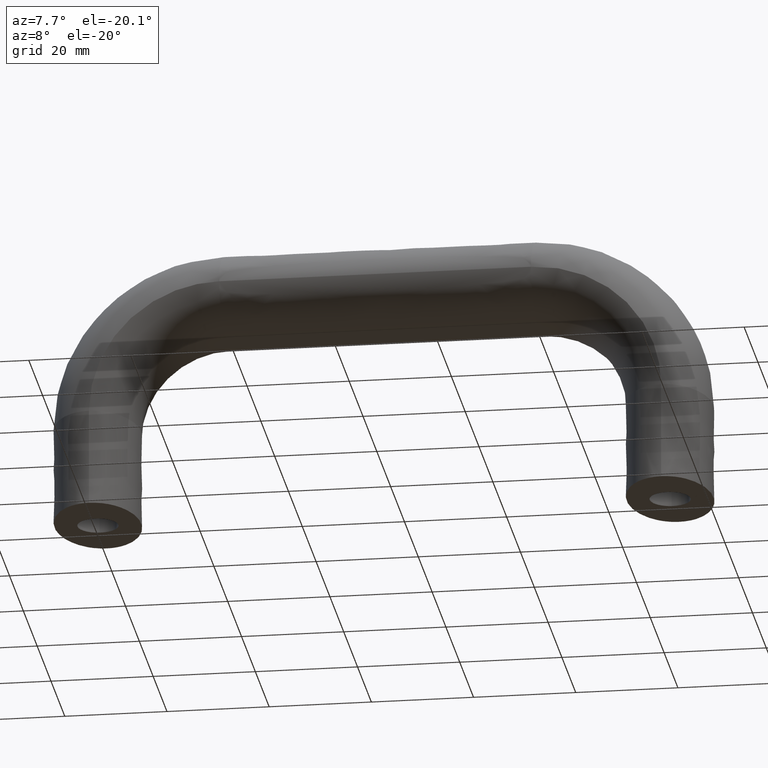
[diagram: clean part render]
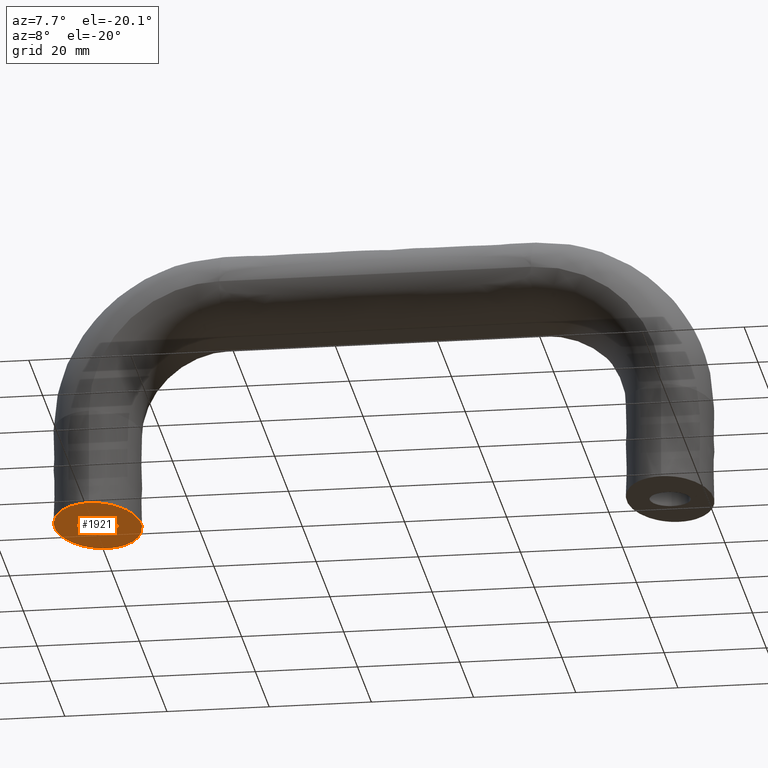
[diagram: same view with one face highlighted and labeled with its STEP entity id]
A machine part, auxiliary view. The second image highlights one B-rep face of the part: STEP entity #1921.
In plain terms, the highlighted face is a freeform B-spline surface patch.
Its self-contained STEP definition (entity closure, byte-faithful):
#85=CARTESIAN_POINT('',(0.472136938864147,-3.972038105426481,-3.407314E-016));
#86=VERTEX_POINT('',#85);
#92=CARTESIAN_POINT('',(-4.0,0.0,0.0));
#93=VERTEX_POINT('',#92);
#94=CARTESIAN_POINT('',(0.472136938864147,-3.972038105426481,-3.407314E-016));
#95=CARTESIAN_POINT('',(0.236896478847260,-4.000000000000000,0.0));
#96=CARTESIAN_POINT('',(0.0,-4.0,0.0));
#97=CARTESIAN_POINT('',(-4.000000000000000,-4.000000000000000,0.0));
#98=CARTESIAN_POINT('',(-4.0,0.0,0.0));
#106=(BOUNDED_CURVE()B_SPLINE_CURVE(2,(#94,#95,#96,#97,#98),.UNSPECIFIED.,.F.,.U.)B_SPLINE_CURVE_WITH_KNOTS((3,2,3),(0.229562473495467,0.250000000000000,0.500000000000000),.UNSPECIFIED.)CURVE()GEOMETRIC_REPRESENTATION_ITEM()RATIONAL_B_SPLINE_CURVE((0.956026754148337,0.976055948310008,1.0,0.707106781186548,1.0))REPRESENTATION_ITEM(''));
#107=EDGE_CURVE('',#86,#93,#106,.T.);
#109=CARTESIAN_POINT('',(-0.244194194313367,3.992539191474974,-3.330669E-016));
#110=VERTEX_POINT('',#109);
#111=CARTESIAN_POINT('',(-4.0,0.0,0.0));
#112=CARTESIAN_POINT('',(-4.000000000000001,3.762824199310103,0.0));
#113=CARTESIAN_POINT('',(-0.244194194313367,3.992539191474974,-3.330669E-016));
#121=(BOUNDED_CURVE()B_SPLINE_CURVE(2,(#111,#112,#113),.UNSPECIFIED.,.F.,.U.)B_SPLINE_CURVE_WITH_KNOTS((3,3),(0.500000000000000,0.739332959115288),.UNSPECIFIED.)CURVE()GEOMETRIC_REPRESENTATION_ITEM()RATIONAL_B_SPLINE_CURVE((1.0,0.719603996946299,0.976072034972131))REPRESENTATION_ITEM(''));
#122=EDGE_CURVE('',#93,#110,#121,.T.);
#196=CARTESIAN_POINT('',(4.0,0.0,0.0));
#197=VERTEX_POINT('',#196);
#198=CARTESIAN_POINT('',(-0.244194194313367,3.992539191474974,-3.330669E-016));
#199=CARTESIAN_POINT('',(-0.122211089469723,4.000000000000000,0.0));
#200=CARTESIAN_POINT('',(0.0,4.0,0.0));
#201=CARTESIAN_POINT('',(4.000000000000000,4.000000000000000,0.0));
#202=CARTESIAN_POINT('',(4.0,0.0,0.0));
#210=(BOUNDED_CURVE()B_SPLINE_CURVE(2,(#198,#199,#200,#201,#202),.UNSPECIFIED.,.F.,.U.)B_SPLINE_CURVE_WITH_KNOTS((3,2,3),(0.739332959115288,0.750000000000000,1.0),.UNSPECIFIED.)CURVE()GEOMETRIC_REPRESENTATION_ITEM()RATIONAL_B_SPLINE_CURVE((0.976072034972130,0.987502784240248,1.0,0.707106781186548,1.0))REPRESENTATION_ITEM(''));
#211=EDGE_CURVE('',#110,#197,#210,.T.);
#213=CARTESIAN_POINT('',(4.0,0.0,0.0));
#214=CARTESIAN_POINT('',(4.000000000000000,-3.552698103378322,0.0));
#215=CARTESIAN_POINT('',(0.472136938864147,-3.972038105426481,-3.407314E-016));
#223=(BOUNDED_CURVE()B_SPLINE_CURVE(2,(#213,#214,#215),.UNSPECIFIED.,.F.,.U.)B_SPLINE_CURVE_WITH_KNOTS((3,3),(0.0,0.229562473495467),.UNSPECIFIED.)CURVE()GEOMETRIC_REPRESENTATION_ITEM()RATIONAL_B_SPLINE_CURVE((1.0,0.731050832876540,0.956026754148337))REPRESENTATION_ITEM(''));
#224=EDGE_CURVE('',#197,#86,#223,.T.);
#1714=CARTESIAN_POINT('',(-3.619217702197332,11.762830137876939,0.0));
#1715=VERTEX_POINT('',#1714);
#1723=CARTESIAN_POINT('',(8.777701E-016,-13.0,4.440892E-016));
#1724=VERTEX_POINT('',#1723);
#1725=CARTESIAN_POINT('',(-3.619217702197332,11.762830137876939,0.0));
#1726=CARTESIAN_POINT('',(-4.957315347035104,10.802779190253920,1.342312E-017));
#1727=CARTESIAN_POINT('',(-6.010276827051138,9.192205832866812,3.900027E-017));
#1728=CARTESIAN_POINT('',(-7.206108376400398,7.363103372940632,6.804783E-017));
#1729=CARTESIAN_POINT('',(-7.852867599778408,4.974733499649919,1.083245E-016));
#1730=CARTESIAN_POINT('',(-8.500002102559582,2.584977784475273,1.486245E-016));
#1731=CARTESIAN_POINT('',(-8.499919245078356,-0.000112553339688,1.940153E-016));
#1732=CARTESIAN_POINT('',(-8.499836339519421,-2.586702879291966,2.394325E-016));
#1733=CARTESIAN_POINT('',(-7.852924015491846,-4.974957111626114,2.830271E-016));
#1734=CARTESIAN_POINT('',(-7.205636323232885,-7.364597118715165,3.266471E-016));
#1735=CARTESIAN_POINT('',(-6.010381069697049,-9.192425188288411,3.618086E-016));
#1736=CARTESIAN_POINT('',(-4.814432274190557,-11.021313847620799,3.969906E-016));
#1737=CARTESIAN_POINT('',(-3.252800868497831,-12.010445500098159,4.183661E-016));
#1738=CARTESIAN_POINT('',(-1.690812841452459,-12.999803035243250,4.397465E-016));
#1739=CARTESIAN_POINT('',(8.777701E-016,-13.0,4.440892E-016));
#1740=B_SPLINE_CURVE_WITH_KNOTS('',2,(#1725,#1726,#1727,#1728,#1729,#1730,#1731,#1732,#1733,#1734,#1735,#1736,#1737,#1738,#1739),.UNSPECIFIED.,.F.,.U.,(3,2,2,2,2,2,2,3),(0.139870310622616,0.250000000000000,0.375000000000000,0.500000000000000,0.625000000000000,0.750000000000000,0.875000000000000,1.0),.UNSPECIFIED.);
#1741=EDGE_CURVE('',#1715,#1724,#1740,.T.);
#1830=CARTESIAN_POINT('',(-1.734723E-015,13.0,0.0));
#1831=VERTEX_POINT('',#1830);
#1832=CARTESIAN_POINT('',(9.215718E-016,-12.999999999999989,0.0));
#1833=CARTESIAN_POINT('',(1.691324023247385,-12.999801020701410,0.0));
#1834=CARTESIAN_POINT('',(3.252809175103269,-12.010433922646730,0.0));
#1835=CARTESIAN_POINT('',(4.815278939456166,-11.020442967741570,0.0));
#1836=CARTESIAN_POINT('',(6.010407640085663,-9.192388155425130,0.0));
#1837=CARTESIAN_POINT('',(7.206229809288498,-7.363272621730250,0.0));
#1838=CARTESIAN_POINT('',(7.852976026345942,-4.974884620746192,0.0));
#1839=CARTESIAN_POINT('',(8.500097515277195,-2.585110767294935,0.0));
#1840=CARTESIAN_POINT('',(8.500000000000005,1.508396E-014,0.0));
#1841=CARTESIAN_POINT('',(8.499902428139970,2.586610767339407,0.0));
#1842=CARTESIAN_POINT('',(7.852976026345933,4.974884620746177,0.0));
#1843=CARTESIAN_POINT('',(7.205674248140467,7.364544260335356,0.0));
#1844=CARTESIAN_POINT('',(6.010407640085652,9.192388155425123,0.0));
#1845=CARTESIAN_POINT('',(4.814447483450429,11.021292649489300,0.0));
#1846=CARTESIAN_POINT('',(3.252809175103262,12.010433922646740,0.0));
#1847=CARTESIAN_POINT('',(1.690814243818090,12.999801080674590,0.0));
#1848=CARTESIAN_POINT('',(-1.829591E-015,13.000000000000011,0.0));
#1849=B_SPLINE_CURVE_WITH_KNOTS('',2,(#1832,#1833,#1834,#1835,#1836,#1837,#1838,#1839,#1840,#1841,#1842,#1843,#1844,#1845,#1846,#1847,#1848),.UNSPECIFIED.,.F.,.U.,(3,2,2,2,2,2,2,2,3),(0.0,0.125000000000000,0.250000000000000,0.375000000000000,0.500000000000000,0.625000000000000,0.750000000000000,0.875000000000000,1.0),.UNSPECIFIED.);
#1850=EDGE_CURVE('',#1724,#1831,#1849,.T.);
#1852=CARTESIAN_POINT('',(-1.734723E-015,13.0,0.0));
#1853=CARTESIAN_POINT('',(-1.691264015607178,12.999717384176090,0.0));
#1854=CARTESIAN_POINT('',(-3.252681772387731,12.010256353269821,0.0));
#1855=CARTESIAN_POINT('',(-3.438549035721939,11.892473387633769,0.0));
#1856=CARTESIAN_POINT('',(-3.619217702197332,11.762830137876939,0.0));
#1857=B_SPLINE_CURVE_WITH_KNOTS('',2,(#1852,#1853,#1854,#1855,#1856),.UNSPECIFIED.,.F.,.U.,(3,2,3),(0.0,0.125000000000000,0.139870310622616),.UNSPECIFIED.);
#1858=EDGE_CURVE('',#1831,#1715,#1857,.T.);
#1905=CARTESIAN_POINT('',(9.293603670201273,14.334696442992101,0.0));
#1906=CARTESIAN_POINT('',(9.404367022600781,-14.262275138929351,0.0));
#1907=CARTESIAN_POINT('',(-9.403880670021325,14.262276325322381,0.0));
#1908=CARTESIAN_POINT('',(-9.293117317621819,-14.334695256599060,0.0));
#1909=B_SPLINE_SURFACE_WITH_KNOTS('',1,1,((#1905,#1907),(#1906,#1908)),.UNSPECIFIED.,.F.,.F.,.U.,(2,2),(2,2),(0.0,28.597186088450339),(0.0,18.697624590474391),.UNSPECIFIED.);
#1910=ORIENTED_EDGE('',*,*,#1741,.F.);
#1911=ORIENTED_EDGE('',*,*,#1858,.F.);
#1912=ORIENTED_EDGE('',*,*,#1850,.F.);
#1913=EDGE_LOOP('',(#1910,#1911,#1912));
#1914=FACE_OUTER_BOUND('',#1913,.T.);
#1915=ORIENTED_EDGE('',*,*,#122,.F.);
#1916=ORIENTED_EDGE('',*,*,#107,.F.);
#1917=ORIENTED_EDGE('',*,*,#224,.F.);
#1918=ORIENTED_EDGE('',*,*,#211,.F.);
#1919=EDGE_LOOP('',(#1915,#1916,#1917,#1918));
#1920=FACE_BOUND('',#1919,.T.);
#1921=ADVANCED_FACE('',(#1914,#1920),#1909,.T.);